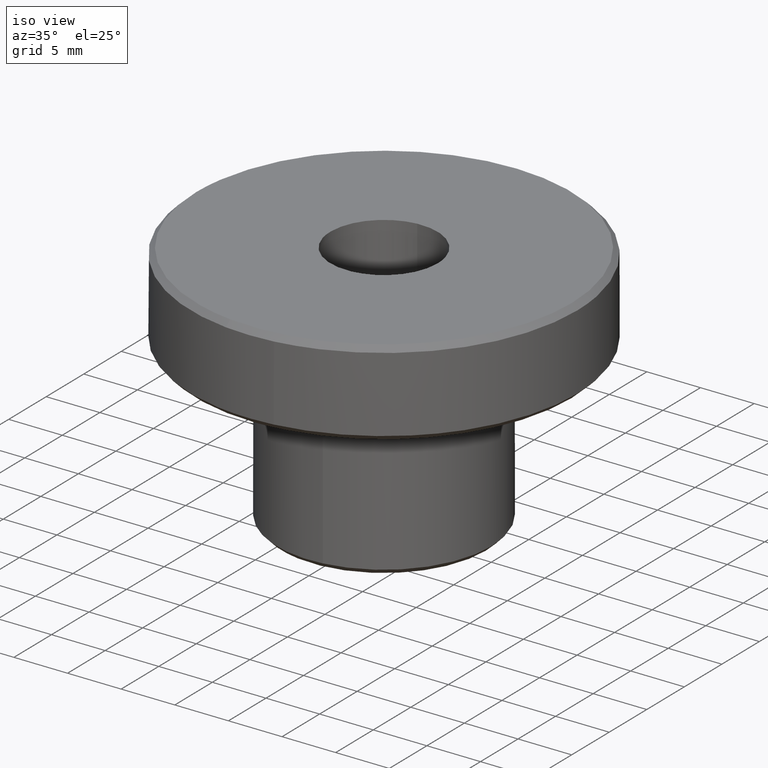
[diagram: clean part render]
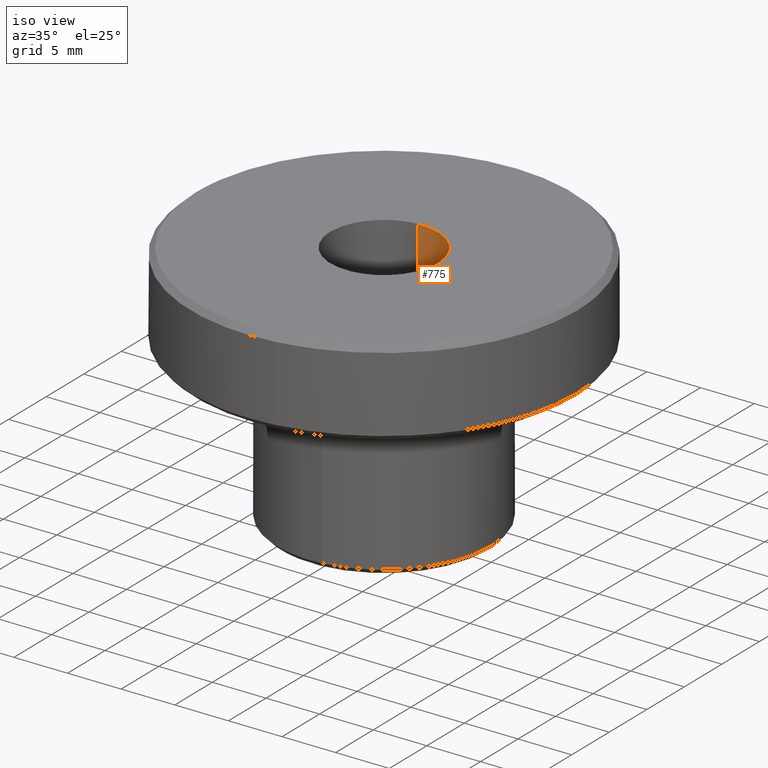
[diagram: same view with one face highlighted and labeled with its STEP entity id]
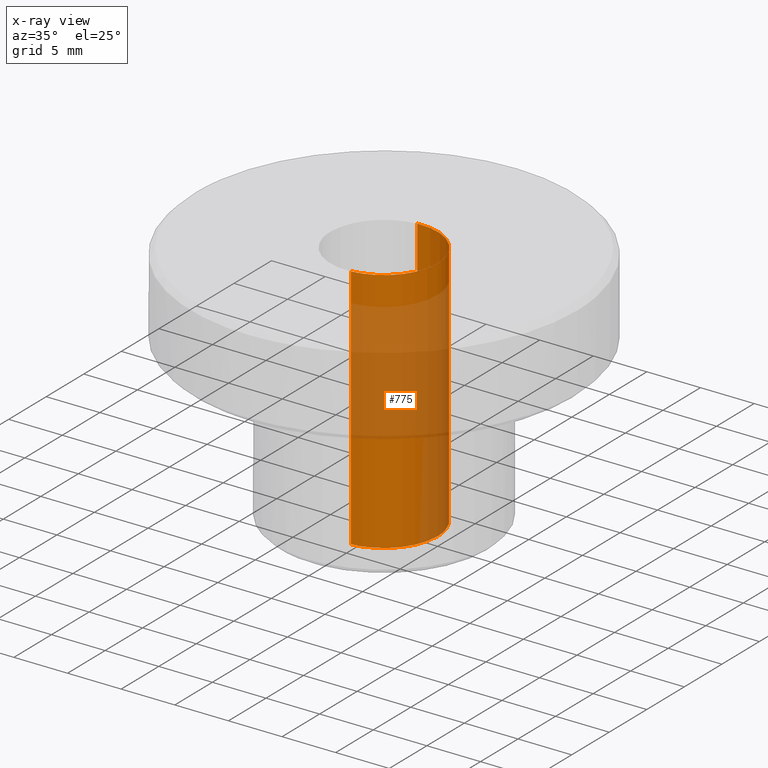
[diagram: x-ray of the same camera — body ghosted, the highlighted face saturated]
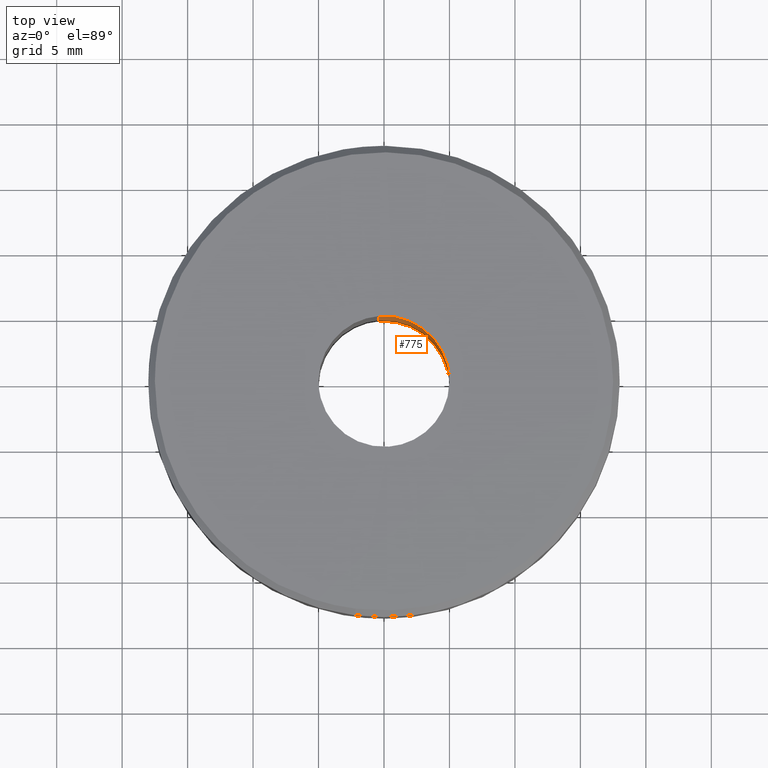
[diagram: same view with one face highlighted and labeled with its STEP entity id]
A machine part, iso view. The second image highlights one B-rep face of the part: STEP entity #775.
The next image is the same camera in x-ray: the body ghosted, the highlighted face saturated — about 58% of this face is hidden behind the body in this view.
A second angle (top view) of the same face is appended — the face is thin or edge-on in the first view.
In plain terms, the highlighted face is a freeform B-spline surface patch.
Its self-contained STEP definition (entity closure, byte-faithful):
#677=CARTESIAN_POINT('',(0.392295478639228,-4.984586668665638,-0.575000000000001));
#678=CARTESIAN_POINT('',(5.376882147304866,-4.592291190026410,-0.575000000000001));
#679=CARTESIAN_POINT('',(4.984586668665638,0.392295478639228,-0.575000000000001));
#680=CARTESIAN_POINT('',(4.592291190026410,5.376882147304866,-0.575000000000001));
#681=CARTESIAN_POINT('',(-0.392295478639228,4.984586668665638,-0.575000000000001));
#682=CARTESIAN_POINT('',(0.392295478639228,-4.984586668665638,23.589375000000000));
#683=CARTESIAN_POINT('',(5.376882147304866,-4.592291190026410,23.589375000000004));
#684=CARTESIAN_POINT('',(4.984586668665638,0.392295478639228,23.589375000000000));
#685=CARTESIAN_POINT('',(4.592291190026410,5.376882147304866,23.589375000000004));
#686=CARTESIAN_POINT('',(-0.392295478639228,4.984586668665638,23.589375000000000));
#694=(BOUNDED_SURFACE()B_SPLINE_SURFACE(2,1,((#677,#682),(#678,#683),(#679,#684),(#680,#685),(#681,#686)),.UNSPECIFIED.,.F.,.F.,.U.)B_SPLINE_SURFACE_WITH_KNOTS((3,2,3),(2,2),(0.0,8.284271247461899,16.568542494923800),(0.0,24.164375000000010),.UNSPECIFIED.)GEOMETRIC_REPRESENTATION_ITEM()RATIONAL_B_SPLINE_SURFACE(((1.0,1.0),(0.707106781186548,0.707106781186548),(1.0,1.0),(0.707106781186548,0.707106781186548),(1.0,1.0)))REPRESENTATION_ITEM('')SURFACE());
#695=CARTESIAN_POINT('',(5.0,0.0,0.0));
#696=VERTEX_POINT('',#695);
#697=CARTESIAN_POINT('',(0.392295478669359,-4.984586668663267,-8.326673E-016));
#698=VERTEX_POINT('',#697);
#699=CARTESIAN_POINT('',(5.0,0.0,0.0));
#700=CARTESIAN_POINT('',(4.999999999999999,-4.621952458234981,0.0));
#701=CARTESIAN_POINT('',(0.392295478669359,-4.984586668663267,-8.326673E-016));
#709=(BOUNDED_CURVE()B_SPLINE_CURVE(2,(#699,#700,#701),.UNSPECIFIED.,.F.,.U.)B_SPLINE_CURVE_WITH_KNOTS((3,3),(0.0,0.236331300630694),.UNSPECIFIED.)CURVE()GEOMETRIC_REPRESENTATION_ITEM()RATIONAL_B_SPLINE_CURVE((1.0,0.723120658607625,0.969723356167490))REPRESENTATION_ITEM(''));
#710=EDGE_CURVE('',#696,#698,#709,.T.);
#711=ORIENTED_EDGE('',*,*,#710,.T.);
#712=CARTESIAN_POINT('',(0.392295478669359,-4.984586668663267,23.0));
#713=VERTEX_POINT('',#712);
#714=CARTESIAN_POINT('',(0.392295478669359,-4.984586668663267,-8.326673E-016));
#715=CARTESIAN_POINT('',(0.392295478669359,-4.984586668663267,23.0));
#716=QUASI_UNIFORM_CURVE('',1,(#714,#715),.UNSPECIFIED.,.F.,.U.);
#717=EDGE_CURVE('',#698,#713,#716,.T.);
#718=ORIENTED_EDGE('',*,*,#717,.T.);
#719=CARTESIAN_POINT('',(5.0,0.0,23.0));
#720=VERTEX_POINT('',#719);
#721=CARTESIAN_POINT('',(5.0,0.0,23.0));
#722=CARTESIAN_POINT('',(4.999999999999999,-4.621952458234981,22.999999999999996));
#723=CARTESIAN_POINT('',(0.392295478669359,-4.984586668663267,23.000000000000007));
#731=(BOUNDED_CURVE()B_SPLINE_CURVE(2,(#721,#722,#723),.UNSPECIFIED.,.F.,.U.)B_SPLINE_CURVE_WITH_KNOTS((3,3),(0.0,0.236331300630694),.UNSPECIFIED.)CURVE()GEOMETRIC_REPRESENTATION_ITEM()RATIONAL_B_SPLINE_CURVE((1.0,0.723120658607625,0.969723356167490))REPRESENTATION_ITEM(''));
#732=EDGE_CURVE('',#720,#713,#731,.T.);
#733=ORIENTED_EDGE('',*,*,#732,.F.);
#734=CARTESIAN_POINT('',(-0.392295478669359,4.984586668663267,23.0));
#735=VERTEX_POINT('',#734);
#736=CARTESIAN_POINT('',(-0.392295478669359,4.984586668663267,23.0));
#737=CARTESIAN_POINT('',(-0.196450535068621,5.0,23.0));
#738=CARTESIAN_POINT('',(0.0,5.0,23.0));
#739=CARTESIAN_POINT('',(5.000000000000001,5.000000000000001,22.999999999999993));
#740=CARTESIAN_POINT('',(5.0,0.0,23.0));
#748=(BOUNDED_CURVE()B_SPLINE_CURVE(2,(#736,#737,#738,#739,#740),.UNSPECIFIED.,.F.,.U.)B_SPLINE_CURVE_WITH_KNOTS((3,2,3),(0.736331300630694,0.750000000000000,1.0),.UNSPECIFIED.)CURVE()GEOMETRIC_REPRESENTATION_ITEM()RATIONAL_B_SPLINE_CURVE((0.969723356167490,0.983986122578923,1.0,0.707106781186548,1.0))REPRESENTATION_ITEM(''));
#749=EDGE_CURVE('',#735,#720,#748,.T.);
#750=ORIENTED_EDGE('',*,*,#749,.F.);
#751=CARTESIAN_POINT('',(-0.392295478669359,4.984586668663267,-8.326673E-016));
#752=VERTEX_POINT('',#751);
#753=CARTESIAN_POINT('',(-0.392295478669359,4.984586668663267,-8.326673E-016));
#754=CARTESIAN_POINT('',(-0.392295478669359,4.984586668663267,23.0));
#755=QUASI_UNIFORM_CURVE('',1,(#753,#754),.UNSPECIFIED.,.F.,.U.);
#756=EDGE_CURVE('',#752,#735,#755,.T.);
#757=ORIENTED_EDGE('',*,*,#756,.F.);
#758=CARTESIAN_POINT('',(-0.392295478669359,4.984586668663267,-8.326673E-016));
#759=CARTESIAN_POINT('',(-0.196450535068621,5.0,0.0));
#760=CARTESIAN_POINT('',(0.0,5.0,0.0));
#761=CARTESIAN_POINT('',(5.000000000000001,5.000000000000001,0.0));
#762=CARTESIAN_POINT('',(5.0,0.0,0.0));
#770=(BOUNDED_CURVE()B_SPLINE_CURVE(2,(#758,#759,#760,#761,#762),.UNSPECIFIED.,.F.,.U.)B_SPLINE_CURVE_WITH_KNOTS((3,2,3),(0.736331300630694,0.750000000000000,1.0),.UNSPECIFIED.)CURVE()GEOMETRIC_REPRESENTATION_ITEM()RATIONAL_B_SPLINE_CURVE((0.969723356167490,0.983986122578923,1.0,0.707106781186548,1.0))REPRESENTATION_ITEM(''));
#771=EDGE_CURVE('',#752,#696,#770,.T.);
#772=ORIENTED_EDGE('',*,*,#771,.T.);
#773=EDGE_LOOP('',(#711,#718,#733,#750,#757,#772));
#774=FACE_OUTER_BOUND('',#773,.T.);
#775=ADVANCED_FACE('',(#774),#694,.F.);